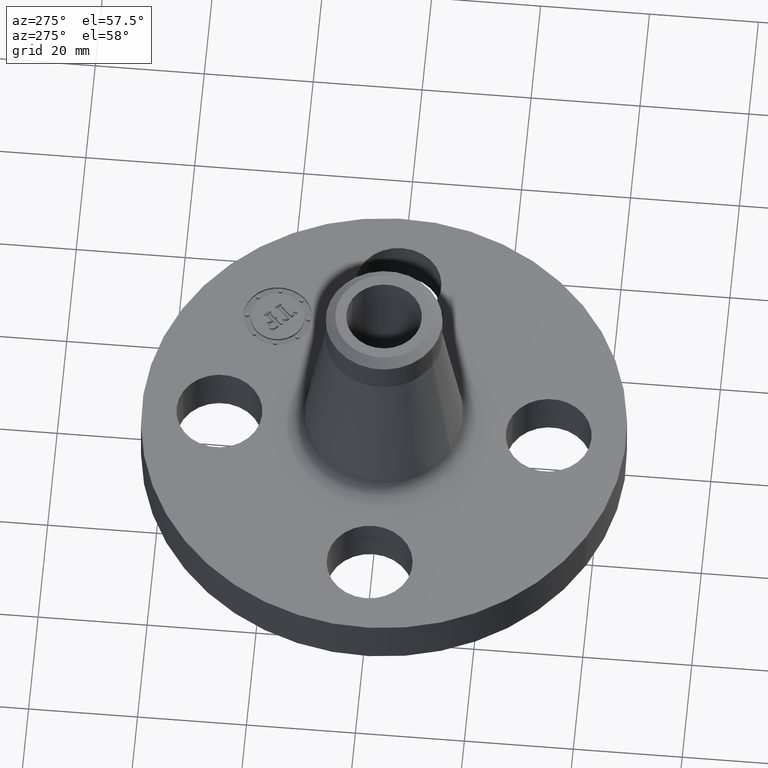
[diagram: clean part render]
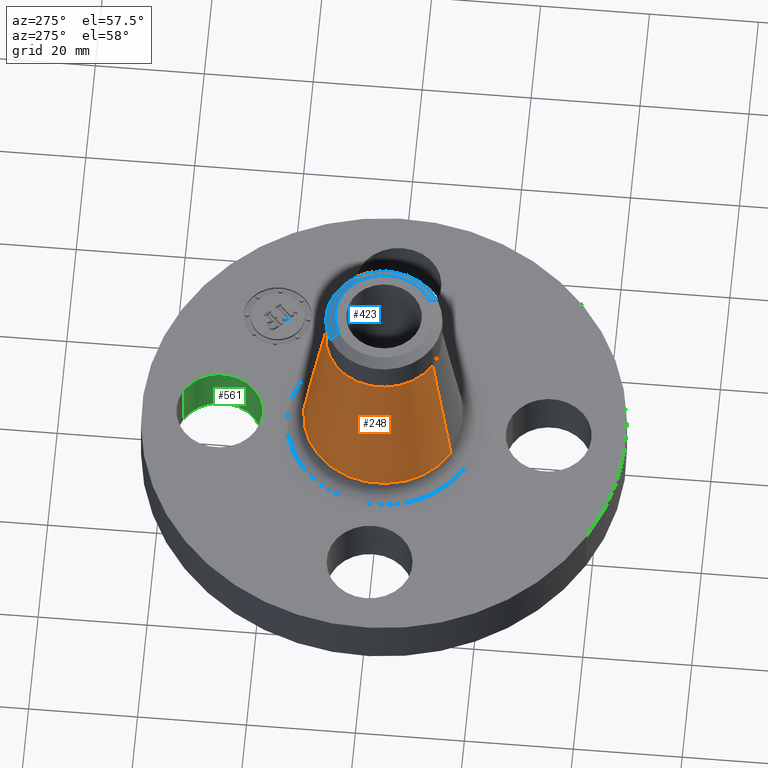
[diagram: same view with three faces highlighted in distinct colors, each labeled with its STEP entity id]
A machine part, auxiliary view with three faces highlighted in distinct colors.
Their STEP definitions:

[orange] entity #248 — the highlighted conical surface has half-angle 8.717 deg.
#196=AXIS2_PLACEMENT_3D('Circle Axis2P3D',#194,#195,$) ;
#209=AXIS2_PLACEMENT_3D('Cone Axis2P3D',#206,#207,#208) ;
#239=AXIS2_PLACEMENT_3D('Circle Axis2P3D',#237,#238,$) ;
#167=CARTESIAN_POINT('Vertex',(0.277774287105,0.508462421954,0.481814080169)) ;
#174=CARTESIAN_POINT('Vertex',(-0.277774287105,-0.508462421954,0.481814080169)) ;
#194=CARTESIAN_POINT('Axis2P3D Location',(0.,0.,0.481814080169)) ;
#206=CARTESIAN_POINT('Axis2P3D Location',(0.,0.,1.52140190821)) ;
#211=CARTESIAN_POINT('Line Origine',(0.23956650666,0.438523548975,1.00160799419)) ;
#215=CARTESIAN_POINT('Vertex',(0.201358726215,0.368584675995,1.52140190821)) ;
#222=CARTESIAN_POINT('Vertex',(-0.201358726215,-0.368584675995,1.52140190821)) ;
#225=CARTESIAN_POINT('Line Origine',(-0.23956650666,-0.438523548975,1.00160799419)) ;
#237=CARTESIAN_POINT('Axis2P3D Location',(0.,0.,1.52140190821)) ;
#195=DIRECTION('Axis2P3D Direction',(0.,0.,-0.0393700787402)) ;
#207=DIRECTION('Axis2P3D Direction',(0.,0.,-0.0393700787402)) ;
#208=DIRECTION('Axis2P3D XDirection',(-0.0188750212049,-0.0345504945626,0.)) ;
#212=DIRECTION('Vector Direction',(0.00286049685398,0.00523610436921,-0.0389153423316)) ;
#226=DIRECTION('Vector Direction',(-0.00286049685398,-0.00523610436921,-0.0389153423316)) ;
#238=DIRECTION('Axis2P3D Direction',(0.,0.,-0.0393700787402)) ;
#213=VECTOR('Line Direction',#212,0.0393700787402) ;
#227=VECTOR('Line Direction',#226,0.0393700787402) ;
#243=ORIENTED_EDGE('',*,*,#198,.F.) ;
#244=ORIENTED_EDGE('',*,*,#229,.T.) ;
#245=ORIENTED_EDGE('',*,*,#241,.T.) ;
#246=ORIENTED_EDGE('',*,*,#217,.F.) ;
#248=ADVANCED_FACE('PartBody',(#247),#210,.T.) ;
#197=CIRCLE('generated circle',#196,0.579389842089) ;
#240=CIRCLE('generated circle',#239,0.420000000002) ;
#210=CONICAL_SURFACE('Cone',#209,0.420000000002,0.152135521429) ;
#198=EDGE_CURVE('',#175,#168,#197,.T.) ;
#217=EDGE_CURVE('',#168,#216,#214,.F.) ;
#229=EDGE_CURVE('',#175,#223,#228,.F.) ;
#241=EDGE_CURVE('',#223,#216,#240,.T.) ;
#242=EDGE_LOOP('',(#243,#244,#245,#246)) ;
#247=FACE_OUTER_BOUND('',#242,.T.) ;
#214=LINE('Line',#211,#213) ;
#228=LINE('Line',#225,#227) ;
#168=VERTEX_POINT('',#167) ;
#175=VERTEX_POINT('',#174) ;
#216=VERTEX_POINT('',#215) ;
#223=VERTEX_POINT('',#222) ;

[blue] entity #423 — the highlighted conical surface has half-angle 52.5 deg.
#270=AXIS2_PLACEMENT_3D('Circle Axis2P3D',#268,#269,$) ;
#297=AXIS2_PLACEMENT_3D('Circle Axis2P3D',#295,#296,$) ;
#311=AXIS2_PLACEMENT_3D('Cone Axis2P3D',#308,#309,#310) ;
#404=AXIS2_PLACEMENT_3D('Circle Axis2P3D',#402,#403,$) ;
#265=CARTESIAN_POINT('Vertex',(0.201358726215,0.368584675995,1.75762238065)) ;
#268=CARTESIAN_POINT('Axis2P3D Location',(0.,0.,1.75762238065)) ;
#272=CARTESIAN_POINT('Vertex',(0.201358726215,-0.368584675995,1.75762238065)) ;
#292=CARTESIAN_POINT('Vertex',(-0.201358726215,0.368584675995,1.75762238065)) ;
#295=CARTESIAN_POINT('Axis2P3D Location',(0.,0.,1.75762238065)) ;
#308=CARTESIAN_POINT('Axis2P3D Location',(0.,0.,1.81000000001)) ;
#313=CARTESIAN_POINT('Line Origine',(0.184995970332,-0.338632852259,1.78381119033)) ;
#317=CARTESIAN_POINT('Vertex',(0.168633214449,-0.308681028522,1.81000000001)) ;
#324=CARTESIAN_POINT('Vertex',(-0.168633214449,0.308681028522,1.81000000001)) ;
#327=CARTESIAN_POINT('Line Origine',(-0.184995970332,0.338632852259,1.78381119033)) ;
#402=CARTESIAN_POINT('Axis2P3D Location',(0.,0.,1.81000000001)) ;
#269=DIRECTION('Axis2P3D Direction',(0.,0.,-0.0393700787402)) ;
#296=DIRECTION('Axis2P3D Direction',(0.,0.,-0.0393700787402)) ;
#309=DIRECTION('Axis2P3D Direction',(-0.,-0.,-0.0393700787402)) ;
#310=DIRECTION('Axis2P3D XDirection',(-0.0188750212049,0.0345504945626,0.)) ;
#314=DIRECTION('Vector Direction',(0.014974561121,-0.02741075027,-0.023966985394)) ;
#328=DIRECTION('Vector Direction',(-0.014974561121,0.02741075027,-0.023966985394)) ;
#403=DIRECTION('Axis2P3D Direction',(0.,0.,-0.0393700787402)) ;
#315=VECTOR('Line Direction',#314,0.0393700787402) ;
#329=VECTOR('Line Direction',#328,0.0393700787402) ;
#417=ORIENTED_EDGE('',*,*,#331,.F.) ;
#418=ORIENTED_EDGE('',*,*,#406,.F.) ;
#419=ORIENTED_EDGE('',*,*,#319,.T.) ;
#420=ORIENTED_EDGE('',*,*,#274,.T.) ;
#421=ORIENTED_EDGE('',*,*,#299,.F.) ;
#423=ADVANCED_FACE('PartBody',(#422),#312,.T.) ;
#271=CIRCLE('generated circle',#270,0.420000000002) ;
#298=CIRCLE('generated circle',#297,0.420000000002) ;
#405=CIRCLE('generated circle',#404,0.351740157481) ;
#312=CONICAL_SURFACE('Cone',#311,0.351740157481,0.916297857297) ;
#274=EDGE_CURVE('',#273,#266,#271,.F.) ;
#299=EDGE_CURVE('',#293,#266,#298,.T.) ;
#319=EDGE_CURVE('',#318,#273,#316,.T.) ;
#331=EDGE_CURVE('',#325,#293,#330,.T.) ;
#406=EDGE_CURVE('',#318,#325,#405,.F.) ;
#416=EDGE_LOOP('',(#417,#418,#419,#420,#421)) ;
#422=FACE_OUTER_BOUND('',#416,.T.) ;
#316=LINE('Line',#313,#315) ;
#330=LINE('Line',#327,#329) ;
#266=VERTEX_POINT('',#265) ;
#273=VERTEX_POINT('',#272) ;
#293=VERTEX_POINT('',#292) ;
#318=VERTEX_POINT('',#317) ;
#325=VERTEX_POINT('',#324) ;

[green] entity #561 — the highlighted cylindrical surface (partial cylindrical patch) has radius 7.874 mm, axis along (0, 0, -1).
#511=AXIS2_PLACEMENT_3D('Circle Axis2P3D',#509,#510,$) ;
#522=AXIS2_PLACEMENT_3D('Cylinder Axis2P3D',#519,#520,#521) ;
#552=AXIS2_PLACEMENT_3D('Circle Axis2P3D',#550,#551,$) ;
#504=CARTESIAN_POINT('Vertex',(-0.148621916968,0.917949405818,0.)) ;
#506=CARTESIAN_POINT('Vertex',(0.148621916968,1.46205059419,-6.99353086378E-017)) ;
#509=CARTESIAN_POINT('Axis2P3D Location',(6.99353086378E-017,1.19,0.)) ;
#519=CARTESIAN_POINT('Axis2P3D Location',(-7.87288363731E-017,1.19,0.376062992128)) ;
#524=CARTESIAN_POINT('Line Origine',(-0.148621916968,0.917949405818,0.190000000001)) ;
#528=CARTESIAN_POINT('Vertex',(-0.148621916968,0.917949405818,0.380000000002)) ;
#531=CARTESIAN_POINT('Line Origine',(0.148621916968,1.46205059419,0.190000000001)) ;
#535=CARTESIAN_POINT('Vertex',(0.148621916968,1.46205059419,0.380000000002)) ;
#550=CARTESIAN_POINT('Axis2P3D Location',(-7.87288363731E-017,1.19,0.380000000002)) ;
#510=DIRECTION('Axis2P3D Direction',(0.,0.,-0.0393700787402)) ;
#520=DIRECTION('Axis2P3D Direction',(0.,0.,-0.0393700787402)) ;
#521=DIRECTION('Axis2P3D XDirection',(0.0188750212049,0.0345504945626,0.)) ;
#525=DIRECTION('Vector Direction',(0.,0.,-0.0393700787402)) ;
#532=DIRECTION('Vector Direction',(0.,0.,-0.0393700787402)) ;
#551=DIRECTION('Axis2P3D Direction',(0.,0.,-0.0393700787402)) ;
#526=VECTOR('Line Direction',#525,0.0393700787402) ;
#533=VECTOR('Line Direction',#532,0.0393700787402) ;
#556=ORIENTED_EDGE('',*,*,#537,.F.) ;
#557=ORIENTED_EDGE('',*,*,#513,.T.) ;
#558=ORIENTED_EDGE('',*,*,#530,.T.) ;
#559=ORIENTED_EDGE('',*,*,#554,.F.) ;
#561=ADVANCED_FACE('PartBody',(#560),#523,.F.) ;
#512=CIRCLE('generated circle',#511,0.310000000001) ;
#553=CIRCLE('generated circle',#552,0.310000000001) ;
#523=CYLINDRICAL_SURFACE('generated cylinder',#522,0.310000000001) ;
#513=EDGE_CURVE('',#507,#505,#512,.T.) ;
#530=EDGE_CURVE('',#505,#529,#527,.F.) ;
#537=EDGE_CURVE('',#507,#536,#534,.F.) ;
#554=EDGE_CURVE('',#536,#529,#553,.T.) ;
#555=EDGE_LOOP('',(#556,#557,#558,#559)) ;
#560=FACE_OUTER_BOUND('',#555,.T.) ;
#527=LINE('Line',#524,#526) ;
#534=LINE('Line',#531,#533) ;
#505=VERTEX_POINT('',#504) ;
#507=VERTEX_POINT('',#506) ;
#529=VERTEX_POINT('',#528) ;
#536=VERTEX_POINT('',#535) ;